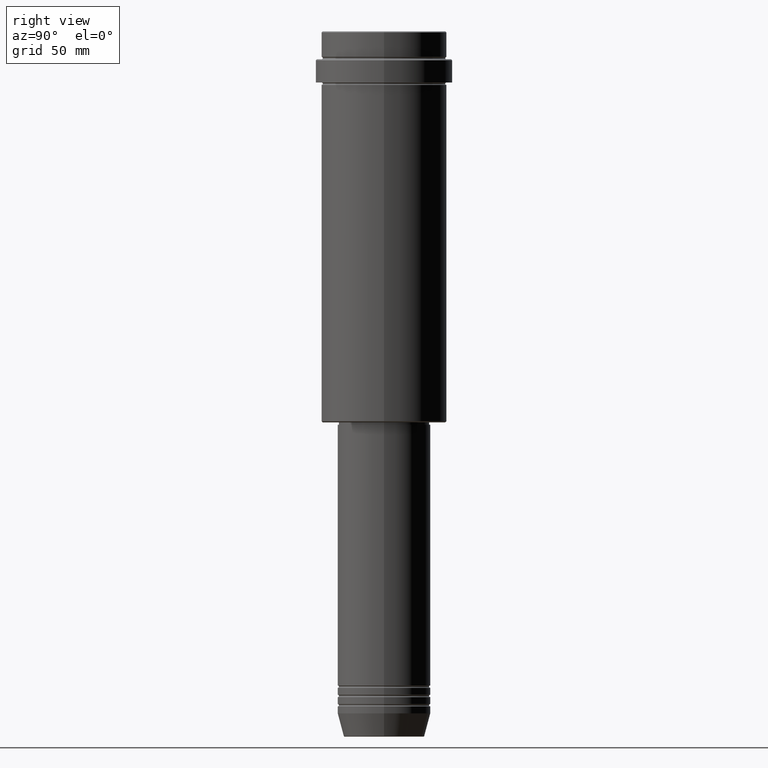
[diagram: clean part render]
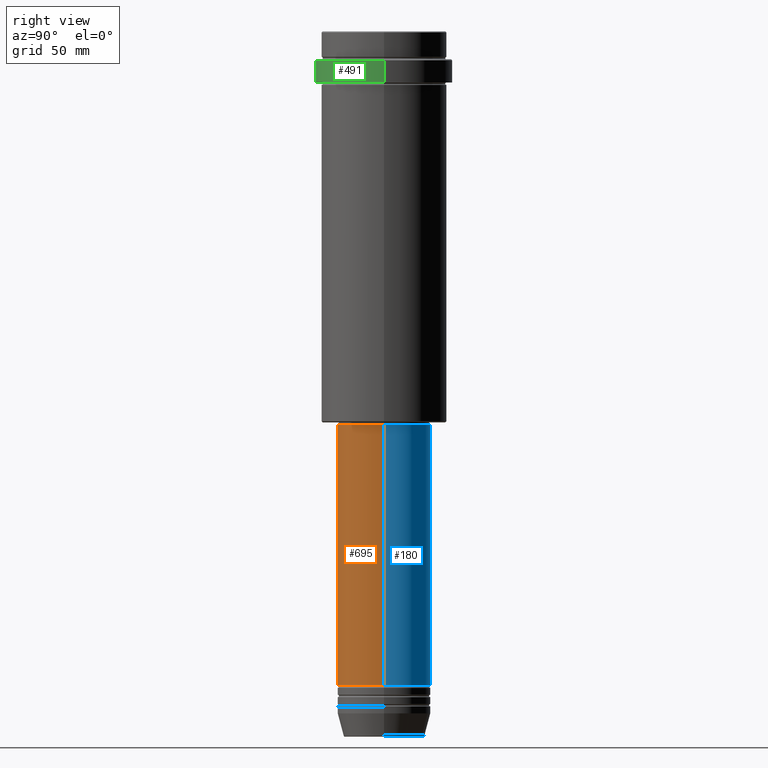
[diagram: same view with three faces highlighted in distinct colors, each labeled with its STEP entity id]
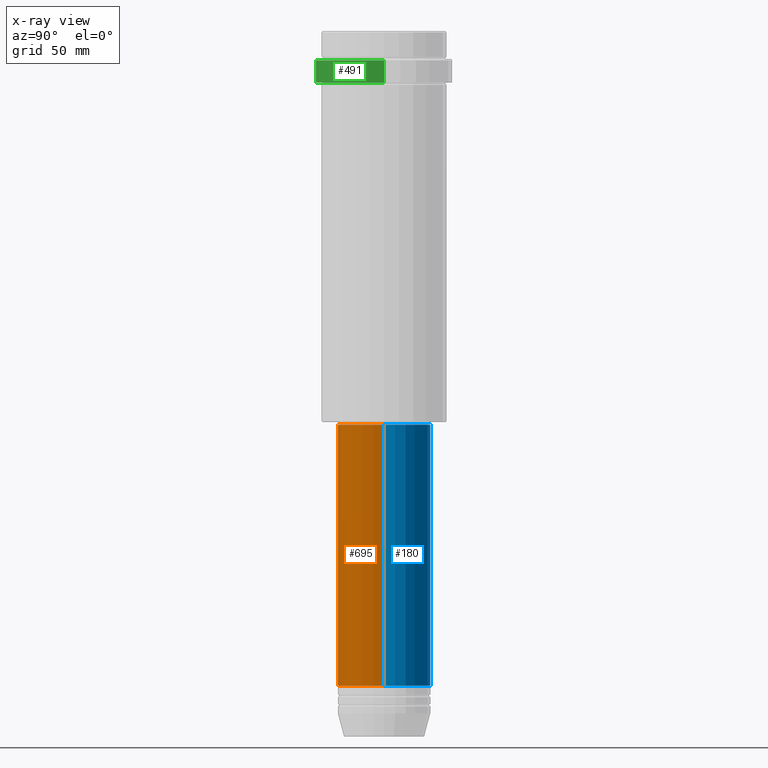
[diagram: x-ray of the same camera — body ghosted, the three highlighted faces saturated]
A machine part, right view with three faces highlighted in distinct colors.
The next image is the same camera in x-ray (body ghosted, the three faces saturated) — at least one of them is partly hidden behind the body in this view.
Their STEP definitions:

[orange] entity #695 — the highlighted cylindrical surface (partial cylindrical patch) has radius 20 mm, axis along (-0, -0, 1).
#8 = DIRECTION ( 'NONE',  ( -0.000000000000000000, -0.000000000000000000, 1.000000000000000000 ) ) ;
#146 = VECTOR ( 'NONE', #857, 1000.000000000000000 ) ;
#168 = DIRECTION ( 'NONE',  ( -0.000000000000000000, -0.000000000000000000, 1.000000000000000000 ) ) ;
#198 = CARTESIAN_POINT ( 'NONE',  ( -20.00000000000000000, 2.449293598294706513E-15, 0.000000000000000000 ) ) ;
#204 = LINE ( 'NONE', #198, #1299 ) ;
#220 = EDGE_CURVE ( 'NONE', #1159, #864, #1039, .T. ) ;
#266 = CYLINDRICAL_SURFACE ( 'NONE', #1197, 20.00000000000000000 ) ;
#365 = EDGE_CURVE ( 'NONE', #381, #658, #204, .T. ) ;
#381 = VERTEX_POINT ( 'NONE', #1110 ) ;
#458 = FACE_OUTER_BOUND ( 'NONE', #834, .T. ) ;
#499 = DIRECTION ( 'NONE',  ( -0.000000000000000000, -0.000000000000000000, 1.000000000000000000 ) ) ;
#596 = CARTESIAN_POINT ( 'NONE',  ( 0.000000000000000000, 0.000000000000000000, -280.9999999999999432 ) ) ;
#611 = EDGE_CURVE ( 'NONE', #381, #1159, #1154, .T. ) ;
#631 = ORIENTED_EDGE ( 'NONE', *, *, #220, .T. ) ;
#658 = VERTEX_POINT ( 'NONE', #853 ) ;
#659 = CARTESIAN_POINT ( 'NONE',  ( 20.00000000000000000, 0.000000000000000000, -168.9999999999999147 ) ) ;
#663 = DIRECTION ( 'NONE',  ( -0.000000000000000000, -0.000000000000000000, 1.000000000000000000 ) ) ;
#668 = CIRCLE ( 'NONE', #731, 20.00000000000000000 ) ;
#677 = CARTESIAN_POINT ( 'NONE',  ( 0.000000000000000000, 0.000000000000000000, -168.9999999999999147 ) ) ;
#695 = ADVANCED_FACE ( 'NONE', ( #458 ), #266, .T. ) ;
#717 = CARTESIAN_POINT ( 'NONE',  ( 0.000000000000000000, 0.000000000000000000, 0.000000000000000000 ) ) ;
#731 = AXIS2_PLACEMENT_3D ( 'NONE', #677, #8, #1222 ) ;
#782 = ORIENTED_EDGE ( 'NONE', *, *, #611, .T. ) ;
#788 = ORIENTED_EDGE ( 'NONE', *, *, #365, .F. ) ;
#834 = EDGE_LOOP ( 'NONE', ( #788, #782, #631, #1044 ) ) ;
#835 = DIRECTION ( 'NONE',  ( 1.000000000000000000, 0.000000000000000000, 0.000000000000000000 ) ) ;
#839 = AXIS2_PLACEMENT_3D ( 'NONE', #596, #168, #835 ) ;
#853 = CARTESIAN_POINT ( 'NONE',  ( -20.00000000000000000, 2.449293598294706513E-15, -168.9999999999999147 ) ) ;
#857 = DIRECTION ( 'NONE',  ( -0.000000000000000000, -0.000000000000000000, 1.000000000000000000 ) ) ;
#864 = VERTEX_POINT ( 'NONE', #659 ) ;
#951 = CARTESIAN_POINT ( 'NONE',  ( 20.00000000000000000, 0.000000000000000000, -280.9999999999999432 ) ) ;
#1007 = EDGE_CURVE ( 'NONE', #658, #864, #668, .T. ) ;
#1039 = LINE ( 'NONE', #1130, #146 ) ;
#1044 = ORIENTED_EDGE ( 'NONE', *, *, #1007, .F. ) ;
#1103 = DIRECTION ( 'NONE',  ( 1.000000000000000000, 0.000000000000000000, 0.000000000000000000 ) ) ;
#1110 = CARTESIAN_POINT ( 'NONE',  ( -20.00000000000000000, 2.449293598294706513E-15, -280.9999999999999432 ) ) ;
#1130 = CARTESIAN_POINT ( 'NONE',  ( 20.00000000000000000, 0.000000000000000000, 0.000000000000000000 ) ) ;
#1154 = CIRCLE ( 'NONE', #839, 20.00000000000000000 ) ;
#1159 = VERTEX_POINT ( 'NONE', #951 ) ;
#1197 = AXIS2_PLACEMENT_3D ( 'NONE', #717, #499, #1103 ) ;
#1222 = DIRECTION ( 'NONE',  ( 1.000000000000000000, 0.000000000000000000, 0.000000000000000000 ) ) ;
#1299 = VECTOR ( 'NONE', #663, 1000.000000000000000 ) ;

[blue] entity #180 — the highlighted cylindrical surface (partial cylindrical patch) has radius 20 mm, axis along (-0, -0, 1).
#14 = CIRCLE ( 'NONE', #923, 20.00000000000000000 ) ;
#19 = DIRECTION ( 'NONE',  ( 1.000000000000000000, 0.000000000000000000, 0.000000000000000000 ) ) ;
#106 = ORIENTED_EDGE ( 'NONE', *, *, #807, .F. ) ;
#115 = DIRECTION ( 'NONE',  ( -0.000000000000000000, -0.000000000000000000, 1.000000000000000000 ) ) ;
#122 = CIRCLE ( 'NONE', #866, 20.00000000000000000 ) ;
#146 = VECTOR ( 'NONE', #857, 1000.000000000000000 ) ;
#155 = DIRECTION ( 'NONE',  ( -0.000000000000000000, -0.000000000000000000, 1.000000000000000000 ) ) ;
#180 = ADVANCED_FACE ( 'NONE', ( #584 ), #213, .T. ) ;
#193 = ORIENTED_EDGE ( 'NONE', *, *, #1097, .T. ) ;
#198 = CARTESIAN_POINT ( 'NONE',  ( -20.00000000000000000, 2.449293598294706513E-15, 0.000000000000000000 ) ) ;
#204 = LINE ( 'NONE', #198, #1299 ) ;
#213 = CYLINDRICAL_SURFACE ( 'NONE', #1227, 20.00000000000000000 ) ;
#220 = EDGE_CURVE ( 'NONE', #1159, #864, #1039, .T. ) ;
#249 = ORIENTED_EDGE ( 'NONE', *, *, #220, .F. ) ;
#330 = DIRECTION ( 'NONE',  ( -0.000000000000000000, -0.000000000000000000, 1.000000000000000000 ) ) ;
#365 = EDGE_CURVE ( 'NONE', #381, #658, #204, .T. ) ;
#381 = VERTEX_POINT ( 'NONE', #1110 ) ;
#584 = FACE_OUTER_BOUND ( 'NONE', #664, .T. ) ;
#658 = VERTEX_POINT ( 'NONE', #853 ) ;
#659 = CARTESIAN_POINT ( 'NONE',  ( 20.00000000000000000, 0.000000000000000000, -168.9999999999999147 ) ) ;
#663 = DIRECTION ( 'NONE',  ( -0.000000000000000000, -0.000000000000000000, 1.000000000000000000 ) ) ;
#664 = EDGE_LOOP ( 'NONE', ( #193, #1408, #106, #249 ) ) ;
#807 = EDGE_CURVE ( 'NONE', #864, #658, #122, .T. ) ;
#853 = CARTESIAN_POINT ( 'NONE',  ( -20.00000000000000000, 2.449293598294706513E-15, -168.9999999999999147 ) ) ;
#857 = DIRECTION ( 'NONE',  ( -0.000000000000000000, -0.000000000000000000, 1.000000000000000000 ) ) ;
#864 = VERTEX_POINT ( 'NONE', #659 ) ;
#866 = AXIS2_PLACEMENT_3D ( 'NONE', #1277, #115, #19 ) ;
#891 = CARTESIAN_POINT ( 'NONE',  ( 0.000000000000000000, 0.000000000000000000, 0.000000000000000000 ) ) ;
#923 = AXIS2_PLACEMENT_3D ( 'NONE', #1264, #155, #1371 ) ;
#951 = CARTESIAN_POINT ( 'NONE',  ( 20.00000000000000000, 0.000000000000000000, -280.9999999999999432 ) ) ;
#1039 = LINE ( 'NONE', #1130, #146 ) ;
#1097 = EDGE_CURVE ( 'NONE', #1159, #381, #14, .T. ) ;
#1110 = CARTESIAN_POINT ( 'NONE',  ( -20.00000000000000000, 2.449293598294706513E-15, -280.9999999999999432 ) ) ;
#1130 = CARTESIAN_POINT ( 'NONE',  ( 20.00000000000000000, 0.000000000000000000, 0.000000000000000000 ) ) ;
#1159 = VERTEX_POINT ( 'NONE', #951 ) ;
#1184 = DIRECTION ( 'NONE',  ( 1.000000000000000000, 0.000000000000000000, 0.000000000000000000 ) ) ;
#1227 = AXIS2_PLACEMENT_3D ( 'NONE', #891, #330, #1184 ) ;
#1264 = CARTESIAN_POINT ( 'NONE',  ( 0.000000000000000000, 0.000000000000000000, -280.9999999999999432 ) ) ;
#1277 = CARTESIAN_POINT ( 'NONE',  ( 0.000000000000000000, 0.000000000000000000, -168.9999999999999147 ) ) ;
#1299 = VECTOR ( 'NONE', #663, 1000.000000000000000 ) ;
#1371 = DIRECTION ( 'NONE',  ( 1.000000000000000000, 0.000000000000000000, 0.000000000000000000 ) ) ;
#1408 = ORIENTED_EDGE ( 'NONE', *, *, #365, .T. ) ;

[green] entity #491 — the highlighted cylindrical surface (partial cylindrical patch) has radius 29.5 mm, axis along (-0, -0, 1).
#28 = CARTESIAN_POINT ( 'NONE',  ( 29.50000000000000000, 0.000000000000000000, -12.50000000000000355 ) ) ;
#35 = VECTOR ( 'NONE', #245, 1000.000000000000000 ) ;
#86 = CARTESIAN_POINT ( 'NONE',  ( 0.000000000000000000, 0.000000000000000000, 0.000000000000000000 ) ) ;
#102 = DIRECTION ( 'NONE',  ( 1.000000000000000000, 0.000000000000000000, 0.000000000000000000 ) ) ;
#160 = CARTESIAN_POINT ( 'NONE',  ( 0.000000000000000000, 0.000000000000000000, -22.00000000000000711 ) ) ;
#171 = CIRCLE ( 'NONE', #800, 29.50000000000000000 ) ;
#186 = CIRCLE ( 'NONE', #1175, 29.49999999999999645 ) ;
#202 = CARTESIAN_POINT ( 'NONE',  ( 29.50000000000000000, 0.000000000000000000, 0.000000000000000000 ) ) ;
#223 = ORIENTED_EDGE ( 'NONE', *, *, #515, .T. ) ;
#245 = DIRECTION ( 'NONE',  ( -0.000000000000000000, -0.000000000000000000, 1.000000000000000000 ) ) ;
#292 = VERTEX_POINT ( 'NONE', #513 ) ;
#303 = CARTESIAN_POINT ( 'NONE',  ( 0.000000000000000000, 0.000000000000000000, -12.50000000000000355 ) ) ;
#421 = ORIENTED_EDGE ( 'NONE', *, *, #918, .T. ) ;
#437 = AXIS2_PLACEMENT_3D ( 'NONE', #86, #1202, #102 ) ;
#486 = VERTEX_POINT ( 'NONE', #560 ) ;
#491 = ADVANCED_FACE ( 'NONE', ( #979 ), #879, .T. ) ;
#496 = EDGE_CURVE ( 'NONE', #292, #776, #1001, .T. ) ;
#506 = VECTOR ( 'NONE', #871, 1000.000000000000000 ) ;
#513 = CARTESIAN_POINT ( 'NONE',  ( -29.49999999999999645, 3.612708057484690815E-15, -22.00000000000000711 ) ) ;
#515 = EDGE_CURVE ( 'NONE', #486, #600, #766, .T. ) ;
#560 = CARTESIAN_POINT ( 'NONE',  ( 29.49999999999999645, 0.000000000000000000, -22.00000000000000711 ) ) ;
#600 = VERTEX_POINT ( 'NONE', #28 ) ;
#610 = ORIENTED_EDGE ( 'NONE', *, *, #496, .F. ) ;
#766 = LINE ( 'NONE', #202, #35 ) ;
#776 = VERTEX_POINT ( 'NONE', #840 ) ;
#800 = AXIS2_PLACEMENT_3D ( 'NONE', #303, #958, #1165 ) ;
#806 = EDGE_LOOP ( 'NONE', ( #610, #421, #223, #1223 ) ) ;
#840 = CARTESIAN_POINT ( 'NONE',  ( -29.50000000000000000, 3.612708057484691604E-15, -12.50000000000000355 ) ) ;
#855 = DIRECTION ( 'NONE',  ( 1.000000000000000000, 0.000000000000000000, 0.000000000000000000 ) ) ;
#871 = DIRECTION ( 'NONE',  ( -0.000000000000000000, -0.000000000000000000, 1.000000000000000000 ) ) ;
#879 = CYLINDRICAL_SURFACE ( 'NONE', #437, 29.50000000000000000 ) ;
#918 = EDGE_CURVE ( 'NONE', #292, #486, #186, .T. ) ;
#958 = DIRECTION ( 'NONE',  ( 0.000000000000000000, 0.000000000000000000, -1.000000000000000000 ) ) ;
#979 = FACE_OUTER_BOUND ( 'NONE', #806, .T. ) ;
#1001 = LINE ( 'NONE', #1401, #506 ) ;
#1153 = DIRECTION ( 'NONE',  ( -0.000000000000000000, -0.000000000000000000, 1.000000000000000000 ) ) ;
#1165 = DIRECTION ( 'NONE',  ( 1.000000000000000000, 0.000000000000000000, 0.000000000000000000 ) ) ;
#1175 = AXIS2_PLACEMENT_3D ( 'NONE', #160, #1153, #855 ) ;
#1202 = DIRECTION ( 'NONE',  ( -0.000000000000000000, -0.000000000000000000, 1.000000000000000000 ) ) ;
#1223 = ORIENTED_EDGE ( 'NONE', *, *, #1251, .T. ) ;
#1251 = EDGE_CURVE ( 'NONE', #600, #776, #171, .T. ) ;
#1401 = CARTESIAN_POINT ( 'NONE',  ( -29.50000000000000000, 3.612708057484691604E-15, 0.000000000000000000 ) ) ;